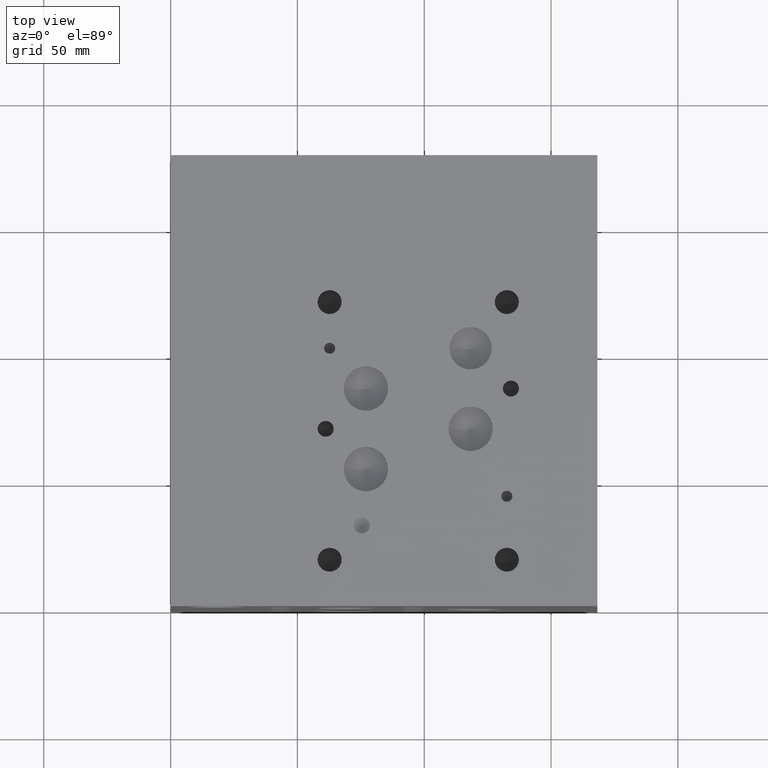
[diagram: clean part render]
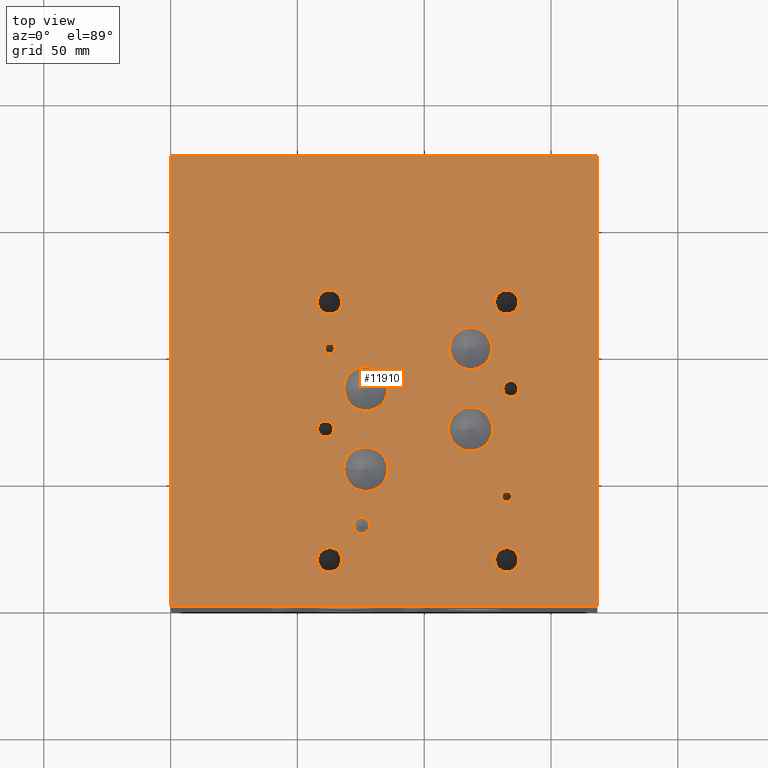
[diagram: same view with one face highlighted and labeled with its STEP entity id]
A machine part, top view. The second image highlights one B-rep face of the part: STEP entity #11910.
In plain terms, the highlighted planar face has unit normal (0, 0, 1).
Its self-contained STEP definition (entity closure, byte-faithful):
#420=CIRCLE('',#12664,3.175);
#421=CIRCLE('',#12665,3.175);
#424=CIRCLE('',#12670,8.3312);
#425=CIRCLE('',#12671,8.3312);
#428=CIRCLE('',#12676,8.7376);
#429=CIRCLE('',#12677,8.7376);
#432=CIRCLE('',#12682,8.7376);
#433=CIRCLE('',#12683,8.7376);
#436=CIRCLE('',#12688,8.7376);
#437=CIRCLE('',#12689,8.7376);
#440=CIRCLE('',#12694,2.1844);
#441=CIRCLE('',#12695,2.1844);
#444=CIRCLE('',#12700,2.1844);
#445=CIRCLE('',#12701,2.1844);
#451=CIRCLE('',#12710,3.175);
#452=CIRCLE('',#12711,3.175);
#458=CIRCLE('',#12721,3.175);
#459=CIRCLE('',#12722,3.175);
#465=CIRCLE('',#12732,4.7625);
#466=CIRCLE('',#12733,4.7625);
#472=CIRCLE('',#12743,4.7625);
#473=CIRCLE('',#12744,4.7625);
#479=CIRCLE('',#12754,4.7625);
#480=CIRCLE('',#12755,4.7625);
#486=CIRCLE('',#12765,4.7625);
#487=CIRCLE('',#12766,4.7625);
#604=FACE_BOUND('',#2332,.T.);
#605=FACE_BOUND('',#2333,.T.);
#606=FACE_BOUND('',#2334,.T.);
#607=FACE_BOUND('',#2335,.T.);
#608=FACE_BOUND('',#2336,.T.);
#609=FACE_BOUND('',#2337,.T.);
#610=FACE_BOUND('',#2338,.T.);
#611=FACE_BOUND('',#2339,.T.);
#612=FACE_BOUND('',#2340,.T.);
#613=FACE_BOUND('',#2341,.T.);
#614=FACE_BOUND('',#2342,.T.);
#615=FACE_BOUND('',#2343,.T.);
#616=FACE_BOUND('',#2344,.T.);
#989=PLANE('',#12772);
#1602=FACE_OUTER_BOUND('',#2331,.T.);
#2331=EDGE_LOOP('',(#10762,#10763,#10764,#10765));
#2332=EDGE_LOOP('',(#10766,#10767));
#2333=EDGE_LOOP('',(#10768,#10769));
#2334=EDGE_LOOP('',(#10770,#10771));
#2335=EDGE_LOOP('',(#10772,#10773));
#2336=EDGE_LOOP('',(#10774,#10775));
#2337=EDGE_LOOP('',(#10776,#10777));
#2338=EDGE_LOOP('',(#10778,#10779));
#2339=EDGE_LOOP('',(#10780,#10781));
#2340=EDGE_LOOP('',(#10782,#10783));
#2341=EDGE_LOOP('',(#10784,#10785));
#2342=EDGE_LOOP('',(#10786,#10787));
#2343=EDGE_LOOP('',(#10788,#10789));
#2344=EDGE_LOOP('',(#10790,#10791));
#2380=LINE('',#15796,#3495);
#2440=LINE('',#16103,#3555);
#2763=LINE('',#17503,#3878);
#3460=LINE('',#20181,#4575);
#3495=VECTOR('',#12830,10.);
#3555=VECTOR('',#12976,10.);
#3878=VECTOR('',#13557,10.);
#4575=VECTOR('',#15578,10.);
#4796=VERTEX_POINT('',#15793);
#4797=VERTEX_POINT('',#15795);
#4872=VERTEX_POINT('',#16100);
#4873=VERTEX_POINT('',#16102);
#5829=VERTEX_POINT('',#19963);
#5830=VERTEX_POINT('',#19964);
#5834=VERTEX_POINT('',#19976);
#5835=VERTEX_POINT('',#19977);
#5839=VERTEX_POINT('',#19989);
#5840=VERTEX_POINT('',#19990);
#5844=VERTEX_POINT('',#20002);
#5845=VERTEX_POINT('',#20003);
#5849=VERTEX_POINT('',#20015);
#5850=VERTEX_POINT('',#20016);
#5854=VERTEX_POINT('',#20028);
#5855=VERTEX_POINT('',#20029);
#5859=VERTEX_POINT('',#20041);
#5860=VERTEX_POINT('',#20042);
#5867=VERTEX_POINT('',#20061);
#5868=VERTEX_POINT('',#20062);
#5875=VERTEX_POINT('',#20083);
#5876=VERTEX_POINT('',#20084);
#5883=VERTEX_POINT('',#20105);
#5884=VERTEX_POINT('',#20106);
#5891=VERTEX_POINT('',#20127);
#5892=VERTEX_POINT('',#20128);
#5899=VERTEX_POINT('',#20149);
#5900=VERTEX_POINT('',#20150);
#5907=VERTEX_POINT('',#20171);
#5908=VERTEX_POINT('',#20172);
#5959=EDGE_CURVE('',#4797,#4796,#2380,.T.);
#6059=EDGE_CURVE('',#4873,#4872,#2440,.T.);
#6488=EDGE_CURVE('',#4872,#4797,#2763,.T.);
#7437=EDGE_CURVE('',#5829,#5830,#420,.T.);
#7438=EDGE_CURVE('',#5830,#5829,#421,.T.);
#7443=EDGE_CURVE('',#5834,#5835,#424,.T.);
#7444=EDGE_CURVE('',#5835,#5834,#425,.T.);
#7449=EDGE_CURVE('',#5839,#5840,#428,.T.);
#7450=EDGE_CURVE('',#5840,#5839,#429,.T.);
#7455=EDGE_CURVE('',#5844,#5845,#432,.T.);
#7456=EDGE_CURVE('',#5845,#5844,#433,.T.);
#7461=EDGE_CURVE('',#5849,#5850,#436,.T.);
#7462=EDGE_CURVE('',#5850,#5849,#437,.T.);
#7467=EDGE_CURVE('',#5854,#5855,#440,.T.);
#7468=EDGE_CURVE('',#5855,#5854,#441,.T.);
#7473=EDGE_CURVE('',#5859,#5860,#444,.T.);
#7474=EDGE_CURVE('',#5860,#5859,#445,.T.);
#7482=EDGE_CURVE('',#5867,#5868,#451,.T.);
#7483=EDGE_CURVE('',#5868,#5867,#452,.T.);
#7492=EDGE_CURVE('',#5875,#5876,#458,.T.);
#7493=EDGE_CURVE('',#5876,#5875,#459,.T.);
#7502=EDGE_CURVE('',#5883,#5884,#465,.T.);
#7503=EDGE_CURVE('',#5884,#5883,#466,.T.);
#7512=EDGE_CURVE('',#5891,#5892,#472,.T.);
#7513=EDGE_CURVE('',#5892,#5891,#473,.T.);
#7522=EDGE_CURVE('',#5899,#5900,#479,.T.);
#7523=EDGE_CURVE('',#5900,#5899,#480,.T.);
#7532=EDGE_CURVE('',#5907,#5908,#486,.T.);
#7533=EDGE_CURVE('',#5908,#5907,#487,.T.);
#7537=EDGE_CURVE('',#4796,#4873,#3460,.T.);
#10762=ORIENTED_EDGE('',*,*,#6488,.T.);
#10763=ORIENTED_EDGE('',*,*,#5959,.T.);
#10764=ORIENTED_EDGE('',*,*,#7537,.T.);
#10765=ORIENTED_EDGE('',*,*,#6059,.T.);
#10766=ORIENTED_EDGE('',*,*,#7437,.T.);
#10767=ORIENTED_EDGE('',*,*,#7438,.T.);
#10768=ORIENTED_EDGE('',*,*,#7443,.T.);
#10769=ORIENTED_EDGE('',*,*,#7444,.T.);
#10770=ORIENTED_EDGE('',*,*,#7449,.T.);
#10771=ORIENTED_EDGE('',*,*,#7450,.T.);
#10772=ORIENTED_EDGE('',*,*,#7455,.T.);
#10773=ORIENTED_EDGE('',*,*,#7456,.T.);
#10774=ORIENTED_EDGE('',*,*,#7461,.T.);
#10775=ORIENTED_EDGE('',*,*,#7462,.T.);
#10776=ORIENTED_EDGE('',*,*,#7467,.T.);
#10777=ORIENTED_EDGE('',*,*,#7468,.T.);
#10778=ORIENTED_EDGE('',*,*,#7473,.T.);
#10779=ORIENTED_EDGE('',*,*,#7474,.T.);
#10780=ORIENTED_EDGE('',*,*,#7482,.T.);
#10781=ORIENTED_EDGE('',*,*,#7483,.T.);
#10782=ORIENTED_EDGE('',*,*,#7492,.T.);
#10783=ORIENTED_EDGE('',*,*,#7493,.T.);
#10784=ORIENTED_EDGE('',*,*,#7502,.T.);
#10785=ORIENTED_EDGE('',*,*,#7503,.T.);
#10786=ORIENTED_EDGE('',*,*,#7512,.T.);
#10787=ORIENTED_EDGE('',*,*,#7513,.T.);
#10788=ORIENTED_EDGE('',*,*,#7522,.T.);
#10789=ORIENTED_EDGE('',*,*,#7523,.T.);
#10790=ORIENTED_EDGE('',*,*,#7532,.T.);
#10791=ORIENTED_EDGE('',*,*,#7533,.T.);
#11910=ADVANCED_FACE('',(#1602,#604,#605,#606,#607,#608,#609,#610,#611,
#612,#613,#614,#615,#616),#989,.T.);
#12664=AXIS2_PLACEMENT_3D('',#19965,#15334,#15335);
#12665=AXIS2_PLACEMENT_3D('',#19966,#15336,#15337);
#12670=AXIS2_PLACEMENT_3D('',#19978,#15348,#15349);
#12671=AXIS2_PLACEMENT_3D('',#19979,#15350,#15351);
#12676=AXIS2_PLACEMENT_3D('',#19991,#15362,#15363);
#12677=AXIS2_PLACEMENT_3D('',#19992,#15364,#15365);
#12682=AXIS2_PLACEMENT_3D('',#20004,#15376,#15377);
#12683=AXIS2_PLACEMENT_3D('',#20005,#15378,#15379);
#12688=AXIS2_PLACEMENT_3D('',#20017,#15390,#15391);
#12689=AXIS2_PLACEMENT_3D('',#20018,#15392,#15393);
#12694=AXIS2_PLACEMENT_3D('',#20030,#15404,#15405);
#12695=AXIS2_PLACEMENT_3D('',#20031,#15406,#15407);
#12700=AXIS2_PLACEMENT_3D('',#20043,#15418,#15419);
#12701=AXIS2_PLACEMENT_3D('',#20044,#15420,#15421);
#12710=AXIS2_PLACEMENT_3D('',#20063,#15440,#15441);
#12711=AXIS2_PLACEMENT_3D('',#20064,#15442,#15443);
#12721=AXIS2_PLACEMENT_3D('',#20085,#15465,#15466);
#12722=AXIS2_PLACEMENT_3D('',#20086,#15467,#15468);
#12732=AXIS2_PLACEMENT_3D('',#20107,#15490,#15491);
#12733=AXIS2_PLACEMENT_3D('',#20108,#15492,#15493);
#12743=AXIS2_PLACEMENT_3D('',#20129,#15515,#15516);
#12744=AXIS2_PLACEMENT_3D('',#20130,#15517,#15518);
#12754=AXIS2_PLACEMENT_3D('',#20151,#15540,#15541);
#12755=AXIS2_PLACEMENT_3D('',#20152,#15542,#15543);
#12765=AXIS2_PLACEMENT_3D('',#20173,#15565,#15566);
#12766=AXIS2_PLACEMENT_3D('',#20174,#15567,#15568);
#12772=AXIS2_PLACEMENT_3D('',#20184,#15583,#15584);
#12830=DIRECTION('',(0.,1.,0.));
#12976=DIRECTION('',(0.,-1.,0.));
#13557=DIRECTION('',(1.,0.,0.));
#15334=DIRECTION('center_axis',(0.,0.,-1.));
#15335=DIRECTION('ref_axis',(1.,0.,0.));
#15336=DIRECTION('center_axis',(0.,0.,-1.));
#15337=DIRECTION('ref_axis',(1.,0.,0.));
#15348=DIRECTION('center_axis',(0.,0.,-1.));
#15349=DIRECTION('ref_axis',(1.,0.,0.));
#15350=DIRECTION('center_axis',(0.,0.,-1.));
#15351=DIRECTION('ref_axis',(1.,0.,0.));
#15362=DIRECTION('center_axis',(0.,0.,-1.));
#15363=DIRECTION('ref_axis',(1.,0.,0.));
#15364=DIRECTION('center_axis',(0.,0.,-1.));
#15365=DIRECTION('ref_axis',(1.,0.,0.));
#15376=DIRECTION('center_axis',(0.,0.,-1.));
#15377=DIRECTION('ref_axis',(1.,0.,0.));
#15378=DIRECTION('center_axis',(0.,0.,-1.));
#15379=DIRECTION('ref_axis',(1.,0.,0.));
#15390=DIRECTION('center_axis',(0.,0.,-1.));
#15391=DIRECTION('ref_axis',(1.,0.,0.));
#15392=DIRECTION('center_axis',(0.,0.,-1.));
#15393=DIRECTION('ref_axis',(1.,0.,0.));
#15404=DIRECTION('center_axis',(0.,0.,-1.));
#15405=DIRECTION('ref_axis',(1.,0.,0.));
#15406=DIRECTION('center_axis',(0.,0.,-1.));
#15407=DIRECTION('ref_axis',(1.,0.,0.));
#15418=DIRECTION('center_axis',(0.,0.,-1.));
#15419=DIRECTION('ref_axis',(1.,0.,0.));
#15420=DIRECTION('center_axis',(0.,0.,-1.));
#15421=DIRECTION('ref_axis',(1.,0.,0.));
#15440=DIRECTION('center_axis',(0.,0.,-1.));
#15441=DIRECTION('ref_axis',(1.,0.,0.));
#15442=DIRECTION('center_axis',(0.,0.,-1.));
#15443=DIRECTION('ref_axis',(1.,0.,0.));
#15465=DIRECTION('center_axis',(0.,0.,-1.));
#15466=DIRECTION('ref_axis',(1.,0.,0.));
#15467=DIRECTION('center_axis',(0.,0.,-1.));
#15468=DIRECTION('ref_axis',(1.,0.,0.));
#15490=DIRECTION('center_axis',(0.,0.,-1.));
#15491=DIRECTION('ref_axis',(1.,0.,0.));
#15492=DIRECTION('center_axis',(0.,0.,-1.));
#15493=DIRECTION('ref_axis',(1.,0.,0.));
#15515=DIRECTION('center_axis',(0.,0.,-1.));
#15516=DIRECTION('ref_axis',(1.,0.,0.));
#15517=DIRECTION('center_axis',(0.,0.,-1.));
#15518=DIRECTION('ref_axis',(1.,0.,0.));
#15540=DIRECTION('center_axis',(0.,0.,-1.));
#15541=DIRECTION('ref_axis',(1.,0.,0.));
#15542=DIRECTION('center_axis',(0.,0.,-1.));
#15543=DIRECTION('ref_axis',(1.,0.,0.));
#15565=DIRECTION('center_axis',(0.,0.,-1.));
#15566=DIRECTION('ref_axis',(1.,0.,0.));
#15567=DIRECTION('center_axis',(0.,0.,-1.));
#15568=DIRECTION('ref_axis',(1.,0.,0.));
#15578=DIRECTION('',(-1.,0.,0.));
#15583=DIRECTION('center_axis',(0.,0.,1.));
#15584=DIRECTION('ref_axis',(1.,0.,0.));
#15793=CARTESIAN_POINT('',(168.275,177.8,152.4));
#15795=CARTESIAN_POINT('',(168.275,0.,152.4));
#15796=CARTESIAN_POINT('',(168.275,0.,152.4));
#16100=CARTESIAN_POINT('',(0.,0.,152.4));
#16102=CARTESIAN_POINT('',(0.,177.8,152.4));
#16103=CARTESIAN_POINT('',(0.,177.8,152.4));
#17503=CARTESIAN_POINT('',(0.,0.,152.4));
#19963=CARTESIAN_POINT('',(78.5622,31.75,152.4));
#19964=CARTESIAN_POINT('',(72.2122,31.75,152.4));
#19965=CARTESIAN_POINT('Origin',(75.3872,31.75,152.4));
#19966=CARTESIAN_POINT('Origin',(75.3872,31.75,152.4));
#19976=CARTESIAN_POINT('',(126.5936,101.6,152.4));
#19977=CARTESIAN_POINT('',(109.9312,101.6,152.4));
#19978=CARTESIAN_POINT('Origin',(118.2624,101.6,152.4));
#19979=CARTESIAN_POINT('Origin',(118.2624,101.6,152.4));
#19989=CARTESIAN_POINT('',(85.725,85.725,152.4));
#19990=CARTESIAN_POINT('',(68.2498,85.725,152.4));
#19991=CARTESIAN_POINT('Origin',(76.9874,85.725,152.4));
#19992=CARTESIAN_POINT('Origin',(76.9874,85.725,152.4));
#20002=CARTESIAN_POINT('',(127.,69.85,152.4));
#20003=CARTESIAN_POINT('',(109.5248,69.85,152.4));
#20004=CARTESIAN_POINT('Origin',(118.2624,69.85,152.4));
#20005=CARTESIAN_POINT('Origin',(118.2624,69.85,152.4));
#20015=CARTESIAN_POINT('',(85.725,53.975,152.4));
#20016=CARTESIAN_POINT('',(68.2498,53.975,152.4));
#20017=CARTESIAN_POINT('Origin',(76.9874,53.975,152.4));
#20018=CARTESIAN_POINT('Origin',(76.9874,53.975,152.4));
#20028=CARTESIAN_POINT('',(64.8716,101.6,152.4));
#20029=CARTESIAN_POINT('',(60.5028,101.6,152.4));
#20030=CARTESIAN_POINT('Origin',(62.6872,101.6,152.4));
#20031=CARTESIAN_POINT('Origin',(62.6872,101.6,152.4));
#20041=CARTESIAN_POINT('',(134.7216,43.2562,152.4));
#20042=CARTESIAN_POINT('',(130.3528,43.2562,152.4));
#20043=CARTESIAN_POINT('Origin',(132.5372,43.2562,152.4));
#20044=CARTESIAN_POINT('Origin',(132.5372,43.2562,152.4));
#20061=CARTESIAN_POINT('',(64.2874,69.85,152.4));
#20062=CARTESIAN_POINT('',(57.9374,69.85,152.4));
#20063=CARTESIAN_POINT('Origin',(61.1124,69.85,152.4));
#20064=CARTESIAN_POINT('Origin',(61.1124,69.85,152.4));
#20083=CARTESIAN_POINT('',(137.3124,85.725,152.4));
#20084=CARTESIAN_POINT('',(130.9624,85.725,152.4));
#20085=CARTESIAN_POINT('Origin',(134.1374,85.725,152.4));
#20086=CARTESIAN_POINT('Origin',(134.1374,85.725,152.4));
#20105=CARTESIAN_POINT('',(137.2997,18.2626,152.4));
#20106=CARTESIAN_POINT('',(127.7747,18.2626,152.4));
#20107=CARTESIAN_POINT('Origin',(132.5372,18.2626,152.4));
#20108=CARTESIAN_POINT('Origin',(132.5372,18.2626,152.4));
#20127=CARTESIAN_POINT('',(67.4497,119.8626,152.4));
#20128=CARTESIAN_POINT('',(57.9247,119.8626,152.4));
#20129=CARTESIAN_POINT('Origin',(62.6872,119.8626,152.4));
#20130=CARTESIAN_POINT('Origin',(62.6872,119.8626,152.4));
#20149=CARTESIAN_POINT('',(137.2997,119.8626,152.4));
#20150=CARTESIAN_POINT('',(127.7747,119.8626,152.4));
#20151=CARTESIAN_POINT('Origin',(132.5372,119.8626,152.4));
#20152=CARTESIAN_POINT('Origin',(132.5372,119.8626,152.4));
#20171=CARTESIAN_POINT('',(67.4497,18.2626,152.4));
#20172=CARTESIAN_POINT('',(57.9247,18.2626,152.4));
#20173=CARTESIAN_POINT('Origin',(62.6872,18.2626,152.4));
#20174=CARTESIAN_POINT('Origin',(62.6872,18.2626,152.4));
#20181=CARTESIAN_POINT('',(168.275,177.8,152.4));
#20184=CARTESIAN_POINT('Origin',(84.1375,88.9,152.4));